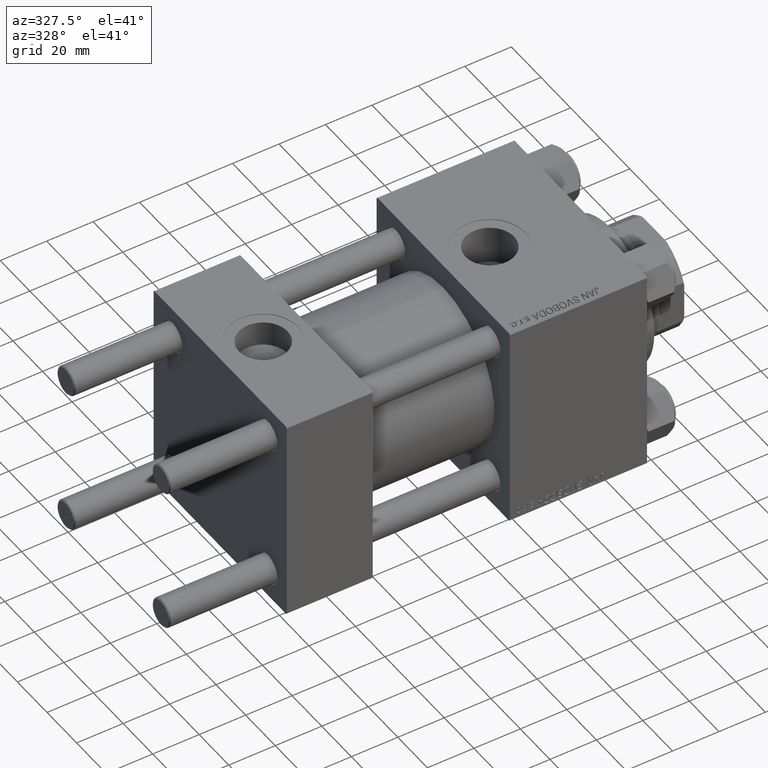
[diagram: clean part render]
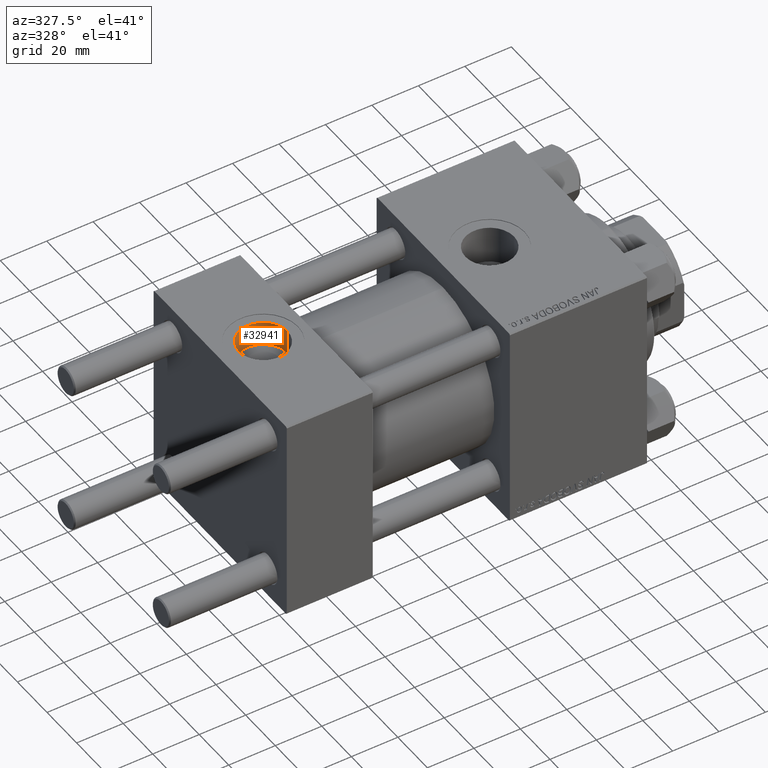
[diagram: same view with one face highlighted and labeled with its STEP entity id]
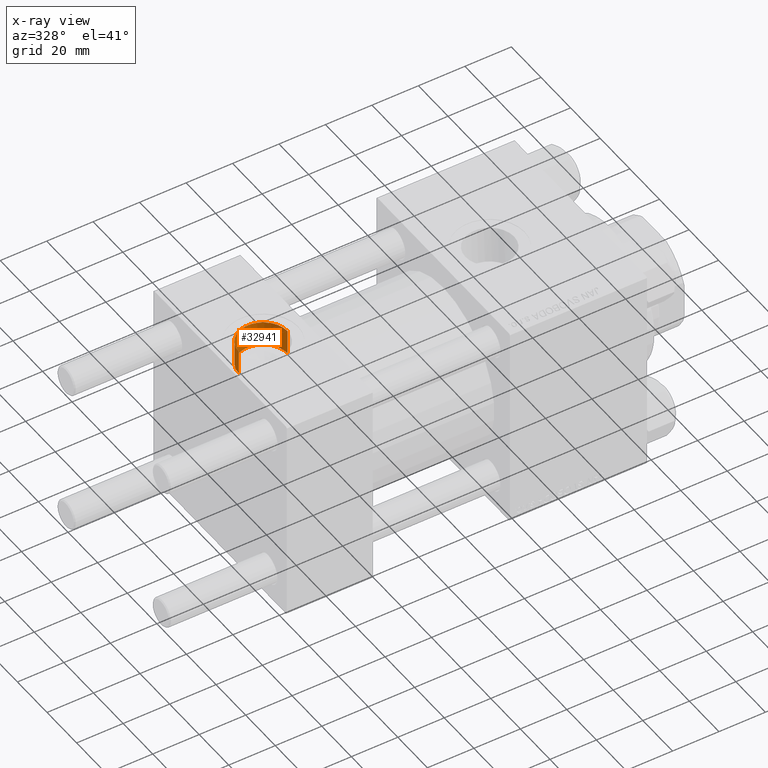
[diagram: x-ray of the same camera — body ghosted, the highlighted face saturated]
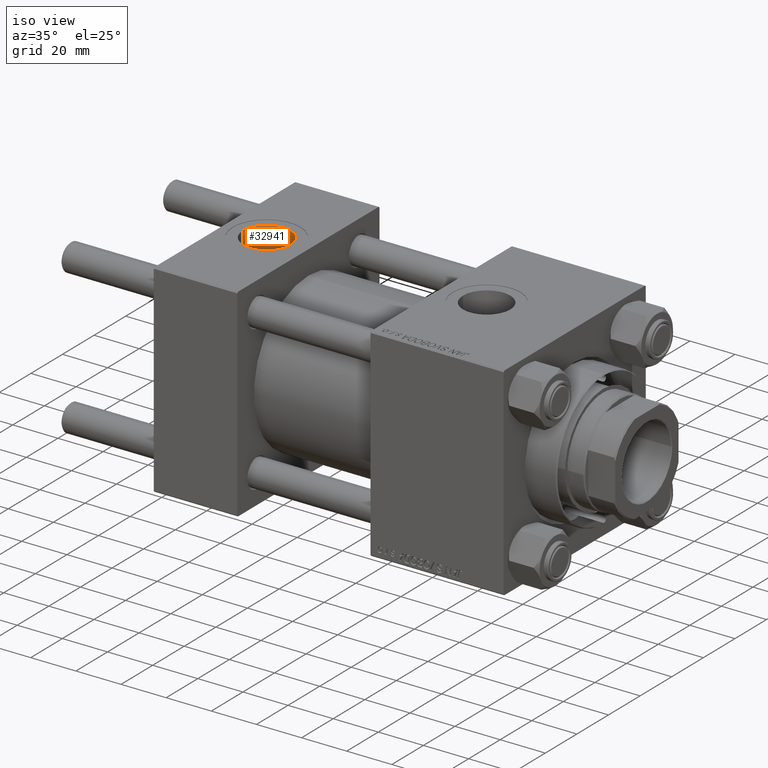
[diagram: same view with one face highlighted and labeled with its STEP entity id]
A machine part, auxiliary view. The second image highlights one B-rep face of the part: STEP entity #32941.
The next image is the same camera in x-ray: the body ghosted, the highlighted face saturated — about 0% of this face is hidden behind the body in this view.
A second angle (iso view) of the same face is appended — the face is thin or edge-on in the first view.
In plain terms, the highlighted cylindrical surface (edge-blend (fillet) strip) has radius 10.48 mm, axis along (0, 0, 1).
Its self-contained STEP definition (entity closure, byte-faithful):
#361 = DIRECTION ( 'NONE',  ( 1.000000000000000000, 0.000000000000000000, 0.000000000000000000 ) ) ;
#1040 = FACE_OUTER_BOUND ( 'NONE', #12417, .T. ) ;
#2022 = ORIENTED_EDGE ( 'NONE', *, *, #13197, .F. ) ;
#6777 = VERTEX_POINT ( 'NONE', #33310 ) ;
#6816 = LINE ( 'NONE', #37806, #6895 ) ;
#6895 = VECTOR ( 'NONE', #25988, 1000.000000000000000 ) ;
#9374 = DIRECTION ( 'NONE',  ( 1.000000000000000000, 0.000000000000000000, 0.000000000000000000 ) ) ;
#9833 = ORIENTED_EDGE ( 'NONE', *, *, #22019, .F. ) ;
#11650 = CARTESIAN_POINT ( 'NONE',  ( 28.98000000000000043, -8.673617379884038628E-15, 44.80000000000000426 ) ) ;
#12417 = EDGE_LOOP ( 'NONE', ( #9833, #2022, #43359, #42278 ) ) ;
#12540 = VERTEX_POINT ( 'NONE', #11650 ) ;
#13197 = EDGE_CURVE ( 'NONE', #41600, #6777, #33359, .T. ) ;
#15919 = CARTESIAN_POINT ( 'NONE',  ( 28.98000000000000043, -8.673617379884038628E-15, 34.20000000000000995 ) ) ;
#17486 = CARTESIAN_POINT ( 'NONE',  ( 8.019999999999999574, -7.390187534377611561E-15, 44.80000000000000426 ) ) ;
#17558 = EDGE_CURVE ( 'NONE', #41600, #12540, #6816, .T. ) ;
#19601 = DIRECTION ( 'NONE',  ( 0.000000000000000000, 0.000000000000000000, 1.000000000000000000 ) ) ;
#22019 = EDGE_CURVE ( 'NONE', #6777, #32579, #32167, .T. ) ;
#23022 = AXIS2_PLACEMENT_3D ( 'NONE', #24318, #39159, #361 ) ;
#24318 = CARTESIAN_POINT ( 'NONE',  ( 18.50000000000000000, -8.673617379884038628E-15, 44.80000000000000426 ) ) ;
#24373 = CARTESIAN_POINT ( 'NONE',  ( 8.019999999999999574, -7.390187534377611561E-15, 34.20000000000000995 ) ) ;
#25988 = DIRECTION ( 'NONE',  ( -0.000000000000000000, -0.000000000000000000, 1.000000000000000000 ) ) ;
#28326 = EDGE_CURVE ( 'NONE', #12540, #32579, #31851, .T. ) ;
#28540 = CARTESIAN_POINT ( 'NONE',  ( 18.50000000000000000, -8.673617379884038628E-15, 34.20000000000000995 ) ) ;
#31851 = CIRCLE ( 'NONE', #23022, 10.48000000000000043 ) ;
#32167 = LINE ( 'NONE', #24373, #40873 ) ;
#32301 = DIRECTION ( 'NONE',  ( -0.000000000000000000, -0.000000000000000000, 1.000000000000000000 ) ) ;
#32579 = VERTEX_POINT ( 'NONE', #17486 ) ;
#32941 = ADVANCED_FACE ( 'NONE', ( #1040 ), #35832, .F. ) ;
#33310 = CARTESIAN_POINT ( 'NONE',  ( 8.019999999999999574, -7.390187534377611561E-15, 34.20000000000000995 ) ) ;
#33359 = CIRCLE ( 'NONE', #49429, 10.48000000000000043 ) ;
#35832 = CYLINDRICAL_SURFACE ( 'NONE', #44108, 10.48000000000000043 ) ;
#37806 = CARTESIAN_POINT ( 'NONE',  ( 28.98000000000000043, -8.673617379884038628E-15, 34.20000000000000995 ) ) ;
#38737 = CARTESIAN_POINT ( 'NONE',  ( 18.50000000000000000, -8.673617379884038628E-15, 34.20000000000000995 ) ) ;
#39159 = DIRECTION ( 'NONE',  ( 0.000000000000000000, 0.000000000000000000, 1.000000000000000000 ) ) ;
#40873 = VECTOR ( 'NONE', #43254, 1000.000000000000000 ) ;
#41600 = VERTEX_POINT ( 'NONE', #15919 ) ;
#42278 = ORIENTED_EDGE ( 'NONE', *, *, #28326, .T. ) ;
#42768 = DIRECTION ( 'NONE',  ( 1.000000000000000000, 0.000000000000000000, 0.000000000000000000 ) ) ;
#43254 = DIRECTION ( 'NONE',  ( -0.000000000000000000, -0.000000000000000000, 1.000000000000000000 ) ) ;
#43359 = ORIENTED_EDGE ( 'NONE', *, *, #17558, .T. ) ;
#44108 = AXIS2_PLACEMENT_3D ( 'NONE', #28540, #32301, #9374 ) ;
#49429 = AXIS2_PLACEMENT_3D ( 'NONE', #38737, #19601, #42768 ) ;